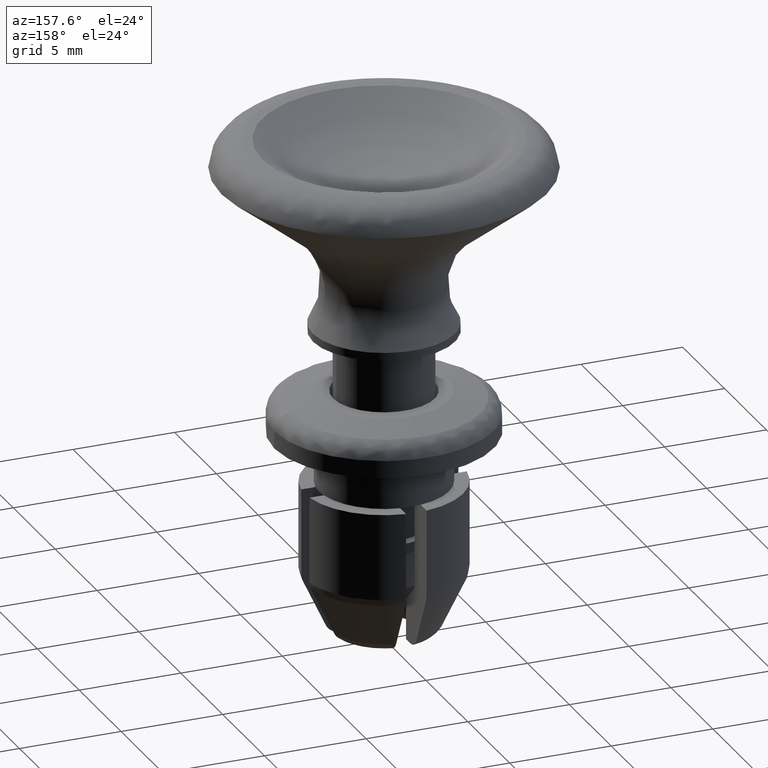
[diagram: clean part render]
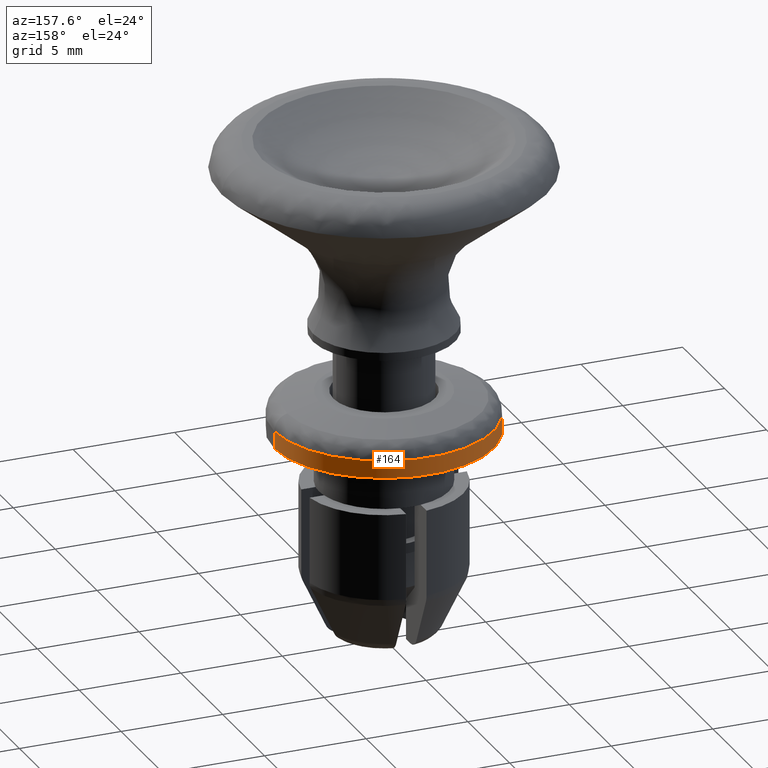
[diagram: same view with one face highlighted and labeled with its STEP entity id]
A machine part, auxiliary view. The second image highlights one B-rep face of the part: STEP entity #164.
In plain terms, the highlighted cylindrical surface (partial cylindrical patch) has radius 5.4 mm, axis along (0, 0, 1).
Its self-contained STEP definition (entity closure, byte-faithful):
#164=ADVANCED_FACE('',(#718),#717,.T.);
#717=CYLINDRICAL_SURFACE('',#1430,5.40000000000E+00);
#718=FACE_OUTER_BOUND('',#1431,.T.);
#1427=CARTESIAN_POINT('',(0.00000000000E+00,0.00000000000E+00,0.00000000000E+00));
#1428=DIRECTION('',(-0.00000000000E+00,-0.00000000000E+00,1.00000000000E+00));
#1429=DIRECTION('',(1.00000000000E+00,0.00000000000E+00,0.00000000000E+00));
#1430=AXIS2_PLACEMENT_3D('',#1427,#1428,#1429);
#1431=EDGE_LOOP('',(#1974,#1975,#1976,#1977));
#1974=ORIENTED_EDGE('',*,*,#2247,.T.);
#1975=ORIENTED_EDGE('',*,*,#2248,.F.);
#1976=ORIENTED_EDGE('',*,*,#2181,.F.);
#1977=ORIENTED_EDGE('',*,*,#2249,.T.);
#2181=EDGE_CURVE('',#2847,#2848,#2849,.T.);
#2247=EDGE_CURVE('',#3251,#3250,#3270,.T.);
#2248=EDGE_CURVE('',#2848,#3250,#3276,.T.);
#2249=EDGE_CURVE('',#2847,#3251,#3282,.T.);
#2847=VERTEX_POINT('',#4021);
#2848=VERTEX_POINT('',#4022);
#2849=CIRCLE('',#4026,5.40000000000E+00);
#3250=VERTEX_POINT('',#4283);
#3251=VERTEX_POINT('',#4284);
#3270=CIRCLE('',#4298,5.40000000000E+00);
#3276=(BOUNDED_CURVE() B_SPLINE_CURVE(1,(#4299,#4300),.UNSPECIFIED.,.F.,.F.) B_SPLINE_CURVE_WITH_KNOTS((2,2),(8.33332935974E-02,9.16666633252E-01),.UNSPECIFIED.) CURVE() GEOMETRIC_REPRESENTATION_ITEM() RATIONAL_B_SPLINE_CURVE((1.00000000000E+00,1.00000000000E+00)) REPRESENTATION_ITEM('') );
#3282=(BOUNDED_CURVE() B_SPLINE_CURVE(1,(#4301,#4302),.UNSPECIFIED.,.F.,.F.) B_SPLINE_CURVE_WITH_KNOTS((2,2),(8.33333333333E-02,9.16666666667E-01),.UNSPECIFIED.) CURVE() GEOMETRIC_REPRESENTATION_ITEM() RATIONAL_B_SPLINE_CURVE((7.50000000000E-01,7.50000000000E-01)) REPRESENTATION_ITEM('') );
#4021=CARTESIAN_POINT('',(-5.40000000000E+00,0.00000000000E+00,-2.00000000000E+00));
#4022=CARTESIAN_POINT('',(5.40000000000E+00,2.96059473233E-16,-2.00000000000E+00));
#4023=CARTESIAN_POINT('',(0.00000000000E+00,0.00000000000E+00,-2.00000000000E+00));
#4024=DIRECTION('',(-0.00000000000E+00,0.00000000000E+00,-1.00000000000E+00));
#4025=DIRECTION('',(-1.00000000000E+00,-1.22460635382E-16,0.00000000000E+00));
#4026=AXIS2_PLACEMENT_3D('',#4023,#4024,#4025);
#4283=CARTESIAN_POINT('',(5.40000000000E+00,2.96059473233E-16,-1.13900000000E+00));
#4284=CARTESIAN_POINT('',(-5.40000000000E+00,0.00000000000E+00,-1.13900000000E+00));
#4295=CARTESIAN_POINT('',(0.00000000000E+00,0.00000000000E+00,-1.13900000000E+00));
#4296=DIRECTION('',(-0.00000000000E+00,0.00000000000E+00,-1.00000000000E+00));
#4297=DIRECTION('',(-1.00000000000E+00,-1.22460635382E-16,0.00000000000E+00));
#4298=AXIS2_PLACEMENT_3D('',#4295,#4296,#4297);
#4299=CARTESIAN_POINT('',(5.40000000000E+00,0.00000000000E+00,-2.00000004106E+00));
#4300=CARTESIAN_POINT('',(5.40000000000E+00,0.00000000000E+00,-1.13900003452E+00));
#4301=CARTESIAN_POINT('',(-5.40000000000E+00,-2.96059473233E-16,-2.00000000000E+00));
#4302=CARTESIAN_POINT('',(-5.40000000000E+00,-2.96059473233E-16,-1.13900000000E+00));